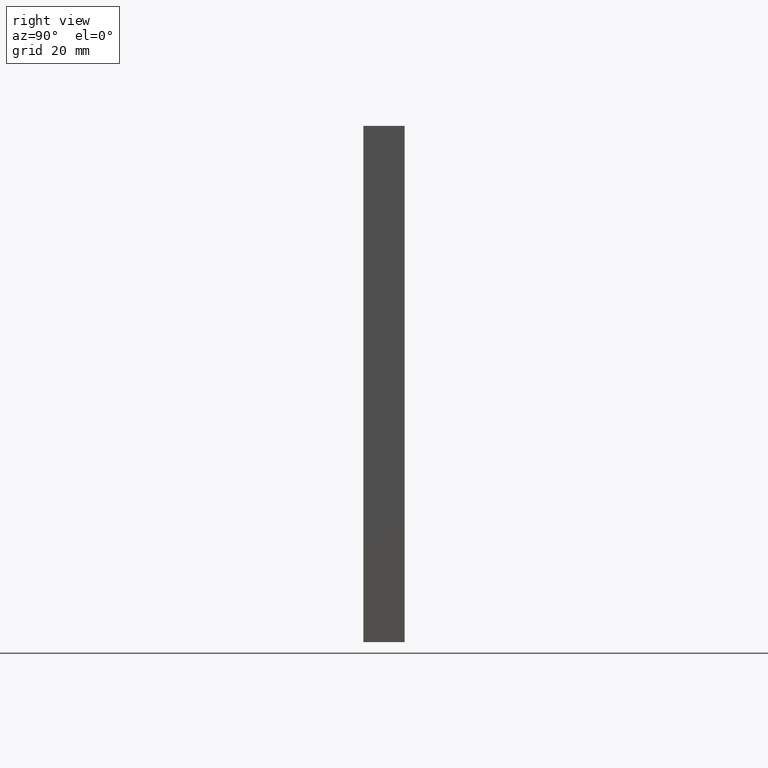
[diagram: clean part render]
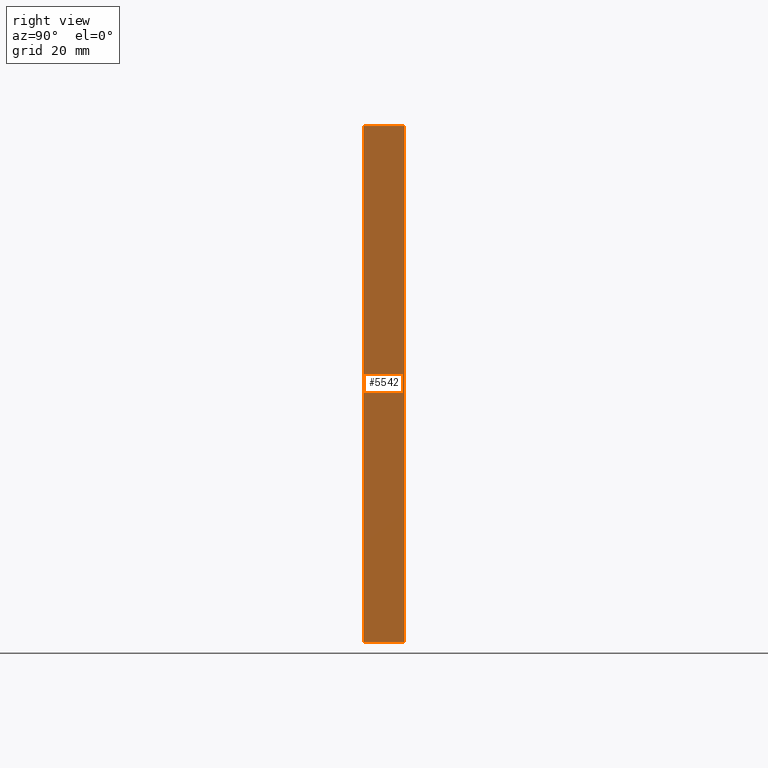
[diagram: same view with one face highlighted and labeled with its STEP entity id]
A machine part, right view. The second image highlights one B-rep face of the part: STEP entity #5542.
In plain terms, the highlighted planar face has unit normal (-1, 0, 0).
Its self-contained STEP definition (entity closure, byte-faithful):
#204 = LINE ( 'NONE', #6186, #11094 ) ;
#430 = CARTESIAN_POINT ( 'NONE',  ( 49.99999999999999289, 8.000000000000000000, -50.00000000000000711 ) ) ;
#623 = EDGE_CURVE ( 'NONE', #3421, #11741, #12131, .T. ) ;
#754 = VECTOR ( 'NONE', #7462, 1000.000000000000000 ) ;
#2519 = EDGE_CURVE ( 'NONE', #3421, #7795, #4015, .T. ) ;
#2776 = DIRECTION ( 'NONE',  ( -0.000000000000000000, -1.000000000000000000, -0.000000000000000000 ) ) ;
#3421 = VERTEX_POINT ( 'NONE', #7349 ) ;
#3484 = AXIS2_PLACEMENT_3D ( 'NONE', #430, #11563, #7021 ) ;
#3525 = FACE_OUTER_BOUND ( 'NONE', #13294, .T. ) ;
#4014 = ORIENTED_EDGE ( 'NONE', *, *, #623, .T. ) ;
#4015 = LINE ( 'NONE', #14044, #754 ) ;
#4651 = CARTESIAN_POINT ( 'NONE',  ( 50.00000000000000000, 0.000000000000000000, 49.99999999999999289 ) ) ;
#4942 = VECTOR ( 'NONE', #10423, 1000.000000000000000 ) ;
#5169 = DIRECTION ( 'NONE',  ( -0.000000000000000000, -1.000000000000000000, -0.000000000000000000 ) ) ;
#5542 = ADVANCED_FACE ( 'NONE', ( #3525 ), #8175, .F. ) ;
#5638 = EDGE_CURVE ( 'NONE', #11741, #6864, #7206, .T. ) ;
#5966 = CARTESIAN_POINT ( 'NONE',  ( 49.99999999999999289, 0.000000000000000000, -50.00000000000000711 ) ) ;
#6186 = CARTESIAN_POINT ( 'NONE',  ( 49.99999999999999289, 8.000000000000000000, -50.00000000000000711 ) ) ;
#6517 = ORIENTED_EDGE ( 'NONE', *, *, #2519, .F. ) ;
#6864 = VERTEX_POINT ( 'NONE', #5966 ) ;
#7021 = DIRECTION ( 'NONE',  ( 6.938893903907228378E-17, 0.000000000000000000, 1.000000000000000000 ) ) ;
#7206 = LINE ( 'NONE', #13637, #4942 ) ;
#7349 = CARTESIAN_POINT ( 'NONE',  ( 50.00000000000000000, 8.000000000000000000, 49.99999999999999289 ) ) ;
#7462 = DIRECTION ( 'NONE',  ( -6.938893903907228378E-17, -0.000000000000000000, -1.000000000000000000 ) ) ;
#7795 = VERTEX_POINT ( 'NONE', #13134 ) ;
#8175 = PLANE ( 'NONE',  #3484 ) ;
#8952 = ORIENTED_EDGE ( 'NONE', *, *, #12173, .F. ) ;
#10423 = DIRECTION ( 'NONE',  ( -6.938893903907228378E-17, -0.000000000000000000, -1.000000000000000000 ) ) ;
#11094 = VECTOR ( 'NONE', #2776, 1000.000000000000000 ) ;
#11563 = DIRECTION ( 'NONE',  ( -1.000000000000000000, 0.000000000000000000, 6.938893903907228378E-17 ) ) ;
#11638 = VECTOR ( 'NONE', #5169, 1000.000000000000000 ) ;
#11741 = VERTEX_POINT ( 'NONE', #4651 ) ;
#11876 = CARTESIAN_POINT ( 'NONE',  ( 50.00000000000000000, 8.000000000000000000, 49.99999999999999289 ) ) ;
#12131 = LINE ( 'NONE', #11876, #11638 ) ;
#12173 = EDGE_CURVE ( 'NONE', #7795, #6864, #204, .T. ) ;
#13134 = CARTESIAN_POINT ( 'NONE',  ( 49.99999999999999289, 8.000000000000000000, -50.00000000000000711 ) ) ;
#13294 = EDGE_LOOP ( 'NONE', ( #13330, #8952, #6517, #4014 ) ) ;
#13330 = ORIENTED_EDGE ( 'NONE', *, *, #5638, .T. ) ;
#13637 = CARTESIAN_POINT ( 'NONE',  ( 49.99999999999999289, 0.000000000000000000, -50.00000000000000711 ) ) ;
#14044 = CARTESIAN_POINT ( 'NONE',  ( 49.99999999999999289, 8.000000000000000000, -50.00000000000000711 ) ) ;